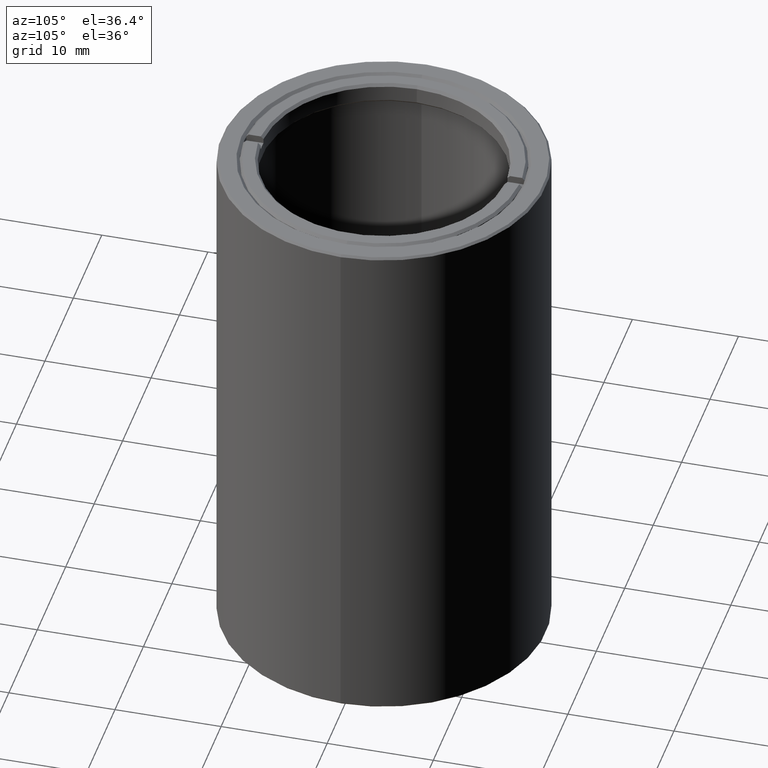
[diagram: clean part render]
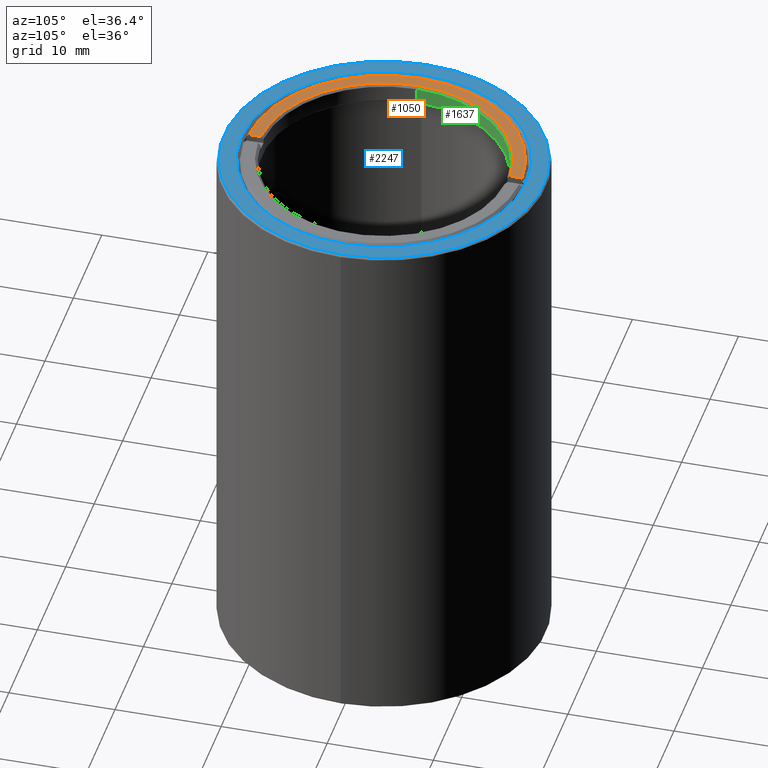
[diagram: same view with three faces highlighted in distinct colors, each labeled with its STEP entity id]
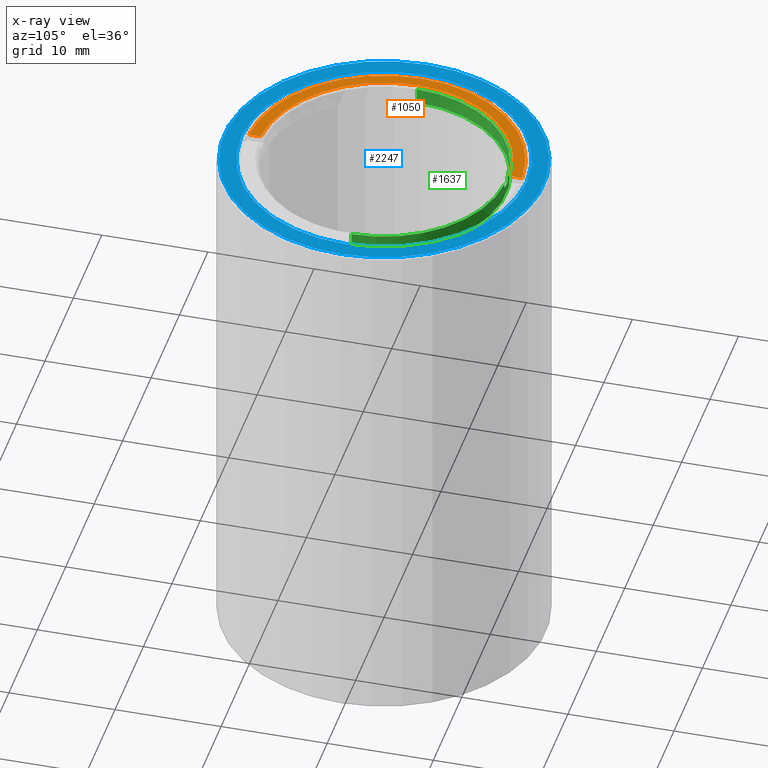
[diagram: x-ray of the same camera — body ghosted, the three highlighted faces saturated]
A machine part, auxiliary view with three faces highlighted in distinct colors.
The next image is the same camera in x-ray (body ghosted, the three faces saturated) — at least one of them is partly hidden behind the body in this view.
Their STEP definitions:

[orange] entity #1050 — the highlighted planar face has unit normal (-0, -0, 1).
#51 = VERTEX_POINT ( 'NONE', #1531 ) ;
#57 = EDGE_CURVE ( 'NONE', #894, #1726, #389, .T. ) ;
#106 = ORIENTED_EDGE ( 'NONE', *, *, #57, .F. ) ;
#389 = LINE ( 'NONE', #1717, #2373 ) ;
#394 = AXIS2_PLACEMENT_3D ( 'NONE', #1048, #2338, #1056 ) ;
#396 = CIRCLE ( 'NONE', #394, 12.89449999999998830 ) ;
#398 = ORIENTED_EDGE ( 'NONE', *, *, #2491, .T. ) ;
#483 = DIRECTION ( 'NONE',  ( 2.453409261297590497E-16, -1.000000000000000000, 1.286532111410922197E-31 ) ) ;
#533 = CARTESIAN_POINT ( 'NONE',  ( -7.776507174585690191E-16, 1.925929944387235415E-31, 6.349999999999991651 ) ) ;
#592 = EDGE_CURVE ( 'NONE', #1685, #1863, #1643, .T. ) ;
#694 = AXIS2_PLACEMENT_3D ( 'NONE', #533, #2075, #2254 ) ;
#709 = CARTESIAN_POINT ( 'NONE',  ( -0.5000000000000027756, 11.74386096009313896, 6.349999999999991651 ) ) ;
#769 = EDGE_CURVE ( 'NONE', #1685, #51, #2347, .T. ) ;
#785 = AXIS2_PLACEMENT_3D ( 'NONE', #1183, #1930, #1388 ) ;
#894 = VERTEX_POINT ( 'NONE', #2318 ) ;
#1011 = ORIENTED_EDGE ( 'NONE', *, *, #769, .T. ) ;
#1048 = CARTESIAN_POINT ( 'NONE',  ( -7.776507174585690191E-16, 1.925929944387235415E-31, 6.349999999999991651 ) ) ;
#1050 = ADVANCED_FACE ( 'NONE', ( #1468 ), #1962, .T. ) ;
#1056 = DIRECTION ( 'NONE',  ( -1.000000000000000000, -1.224646799147353207E-16, -1.345320466847732581E-16 ) ) ;
#1147 = EDGE_LOOP ( 'NONE', ( #106, #1479, #2316, #1011, #398 ) ) ;
#1180 = VECTOR ( 'NONE', #483, 1000.000000000000000 ) ;
#1183 = CARTESIAN_POINT ( 'NONE',  ( -7.776507174585690191E-16, 1.925929944387235415E-31, 6.349999999999991651 ) ) ;
#1295 = CARTESIAN_POINT ( 'NONE',  ( -7.776507174585690191E-16, 1.925929944387235415E-31, 6.349999999999991651 ) ) ;
#1318 = CARTESIAN_POINT ( 'NONE',  ( -0.4999999999999967804, -12.88480229766835095, 6.349999999999991651 ) ) ;
#1388 = DIRECTION ( 'NONE',  ( -1.000000000000000000, -1.224646799147353454E-16, -1.224646799147351235E-16 ) ) ;
#1468 = FACE_OUTER_BOUND ( 'NONE', #1147, .T. ) ;
#1479 = ORIENTED_EDGE ( 'NONE', *, *, #2148, .T. ) ;
#1531 = CARTESIAN_POINT ( 'NONE',  ( -11.75449999999998418, -1.439511080057755069E-15, 6.349999999999989875 ) ) ;
#1643 = LINE ( 'NONE', #2036, #1180 ) ;
#1685 = VERTEX_POINT ( 'NONE', #1805 ) ;
#1717 = CARTESIAN_POINT ( 'NONE',  ( -0.4999999999999741873, -104.9999999999998437, 6.349999999999991651 ) ) ;
#1726 = VERTEX_POINT ( 'NONE', #709 ) ;
#1805 = CARTESIAN_POINT ( 'NONE',  ( -0.4999999999999971689, -11.74386096009313896, 6.349999999999991651 ) ) ;
#1863 = VERTEX_POINT ( 'NONE', #1318 ) ;
#1877 = DIRECTION ( 'NONE',  ( 1.224646799147355179E-16, 7.395570986447007571E-32, -1.000000000000000000 ) ) ;
#1930 = DIRECTION ( 'NONE',  ( -1.224646799147351235E-16, -7.395570986447002097E-32, 1.000000000000000000 ) ) ;
#1962 = PLANE ( 'NONE',  #785 ) ;
#2036 = CARTESIAN_POINT ( 'NONE',  ( -0.4999999999999741873, -104.9999999999998437, 6.349999999999991651 ) ) ;
#2075 = DIRECTION ( 'NONE',  ( 1.224646799147355179E-16, 7.395570986447007571E-32, -1.000000000000000000 ) ) ;
#2100 = DIRECTION ( 'NONE',  ( -1.000000000000000000, 1.653892159485510386E-15, -1.475795206922292275E-16 ) ) ;
#2148 = EDGE_CURVE ( 'NONE', #894, #1863, #396, .T. ) ;
#2254 = DIRECTION ( 'NONE',  ( -1.000000000000000000, -1.224646799147353454E-16, -1.475795206922292275E-16 ) ) ;
#2314 = CIRCLE ( 'NONE', #694, 11.75449999999999129 ) ;
#2316 = ORIENTED_EDGE ( 'NONE', *, *, #592, .F. ) ;
#2318 = CARTESIAN_POINT ( 'NONE',  ( -0.5000000000000032196, 12.88480229766835095, 6.349999999999992539 ) ) ;
#2338 = DIRECTION ( 'NONE',  ( -1.224646799147355179E-16, -7.395570986447007571E-32, 1.000000000000000000 ) ) ;
#2347 = CIRCLE ( 'NONE', #2475, 11.75449999999999129 ) ;
#2373 = VECTOR ( 'NONE', #2476, 1000.000000000000000 ) ;
#2475 = AXIS2_PLACEMENT_3D ( 'NONE', #1295, #1877, #2100 ) ;
#2476 = DIRECTION ( 'NONE',  ( 2.453409261297590497E-16, -1.000000000000000000, 1.286532111410922197E-31 ) ) ;
#2491 = EDGE_CURVE ( 'NONE', #51, #1726, #2314, .T. ) ;

[blue] entity #2247 — the highlighted planar face has unit normal (0, 0, -1).
#11 = CARTESIAN_POINT ( 'NONE',  ( 13.45000000000000284, -1.216263278479431880E-30, 6.350000000000003197 ) ) ;
#294 = PLANE ( 'NONE',  #1001 ) ;
#335 = FACE_OUTER_BOUND ( 'NONE', #1683, .T. ) ;
#388 = CARTESIAN_POINT ( 'NONE',  ( -7.776507174585742453E-16, -1.216263278479431880E-30, 6.350000000000001421 ) ) ;
#420 = CIRCLE ( 'NONE', #1571, 15.05000000000000782 ) ;
#436 = VERTEX_POINT ( 'NONE', #11 ) ;
#476 = VERTEX_POINT ( 'NONE', #665 ) ;
#496 = CIRCLE ( 'NONE', #1671, 15.05000000000000782 ) ;
#501 = DIRECTION ( 'NONE',  ( 1.224646799147353207E-16, 0.000000000000000000, -1.000000000000000000 ) ) ;
#563 = DIRECTION ( 'NONE',  ( 1.224646799147353207E-16, 0.000000000000000000, -1.000000000000000000 ) ) ;
#585 = DIRECTION ( 'NONE',  ( 1.000000000000000000, 1.224646799147353207E-16, 1.152640183373293227E-16 ) ) ;
#665 = CARTESIAN_POINT ( 'NONE',  ( -15.05000000000000782, -3.710679801416482404E-15, 6.349999999999999645 ) ) ;
#671 = EDGE_CURVE ( 'NONE', #436, #1540, #2047, .T. ) ;
#797 = DIRECTION ( 'NONE',  ( 1.000000000000000000, 1.224646799147353207E-16, 1.152640183373293227E-16 ) ) ;
#819 = CARTESIAN_POINT ( 'NONE',  ( -7.776507174585742453E-16, -1.216263278479431880E-30, 6.350000000000001421 ) ) ;
#850 = VERTEX_POINT ( 'NONE', #2065 ) ;
#896 = CARTESIAN_POINT ( 'NONE',  ( -7.776507174585742453E-16, -1.216263278479431880E-30, 6.350000000000001421 ) ) ;
#983 = AXIS2_PLACEMENT_3D ( 'NONE', #1260, #501, #2253 ) ;
#985 = ORIENTED_EDGE ( 'NONE', *, *, #1592, .T. ) ;
#1001 = AXIS2_PLACEMENT_3D ( 'NONE', #896, #2240, #1097 ) ;
#1097 = DIRECTION ( 'NONE',  ( 1.000000000000000000, 1.224646799147353207E-16, 1.224646799147353207E-16 ) ) ;
#1103 = ORIENTED_EDGE ( 'NONE', *, *, #1116, .T. ) ;
#1116 = EDGE_CURVE ( 'NONE', #476, #850, #420, .T. ) ;
#1161 = FACE_BOUND ( 'NONE', #1924, .T. ) ;
#1260 = CARTESIAN_POINT ( 'NONE',  ( -7.776507174585742453E-16, -1.216263278479431880E-30, 6.350000000000001421 ) ) ;
#1307 = ORIENTED_EDGE ( 'NONE', *, *, #671, .T. ) ;
#1346 = CARTESIAN_POINT ( 'NONE',  ( -13.45000000000000284, -1.647149944853191766E-15, 6.349999999999999645 ) ) ;
#1408 = DIRECTION ( 'NONE',  ( -1.224646799147353207E-16, -0.000000000000000000, 1.000000000000000000 ) ) ;
#1540 = VERTEX_POINT ( 'NONE', #1346 ) ;
#1544 = CARTESIAN_POINT ( 'NONE',  ( -7.776507174585742453E-16, -1.216263278479431880E-30, 6.350000000000001421 ) ) ;
#1571 = AXIS2_PLACEMENT_3D ( 'NONE', #388, #1757, #585 ) ;
#1592 = EDGE_CURVE ( 'NONE', #850, #476, #496, .T. ) ;
#1671 = AXIS2_PLACEMENT_3D ( 'NONE', #819, #1408, #797 ) ;
#1683 = EDGE_LOOP ( 'NONE', ( #985, #1103 ) ) ;
#1757 = DIRECTION ( 'NONE',  ( -1.224646799147353207E-16, -0.000000000000000000, 1.000000000000000000 ) ) ;
#1891 = EDGE_CURVE ( 'NONE', #1540, #436, #2285, .T. ) ;
#1924 = EDGE_LOOP ( 'NONE', ( #2511, #1307 ) ) ;
#2047 = CIRCLE ( 'NONE', #983, 13.45000000000000284 ) ;
#2065 = CARTESIAN_POINT ( 'NONE',  ( 15.05000000000000782, 1.843093432716766267E-15, 6.350000000000003197 ) ) ;
#2096 = AXIS2_PLACEMENT_3D ( 'NONE', #1544, #563, #2117 ) ;
#2117 = DIRECTION ( 'NONE',  ( 1.000000000000000000, 1.224646799147353454E-16, 1.289757231209521657E-16 ) ) ;
#2240 = DIRECTION ( 'NONE',  ( 1.224646799147353207E-16, 0.000000000000000000, -1.000000000000000000 ) ) ;
#2247 = ADVANCED_FACE ( 'NONE', ( #1161, #335 ), #294, .F. ) ;
#2253 = DIRECTION ( 'NONE',  ( 1.000000000000000000, 1.224646799147353454E-16, 1.289757231209521657E-16 ) ) ;
#2285 = CIRCLE ( 'NONE', #2096, 13.45000000000000284 ) ;
#2511 = ORIENTED_EDGE ( 'NONE', *, *, #1891, .T. ) ;

[green] entity #1637 — the highlighted cylindrical surface (partial cylindrical patch) has radius 11.5045 mm, axis along (0, 0, -1).
#3 = DIRECTION ( 'NONE',  ( -1.000000000000000000, -1.224646799147353207E-16, -1.507865162307626328E-16 ) ) ;
#5 = CARTESIAN_POINT ( 'NONE',  ( -11.50449999999999839, -1.424202995068411992E-15, 6.099999999999997868 ) ) ;
#12 = ORIENTED_EDGE ( 'NONE', *, *, #1465, .F. ) ;
#15 = CARTESIAN_POINT ( 'NONE',  ( -0.5000000000000027756, 11.49362955075548243, 6.349999999999991651 ) ) ;
#42 = CARTESIAN_POINT ( 'NONE',  ( -7.776507174585690191E-16, 1.925929944387235415E-31, 6.349999999999991651 ) ) ;
#58 = ORIENTED_EDGE ( 'NONE', *, *, #338, .F. ) ;
#143 = VECTOR ( 'NONE', #1354, 1000.000000000000000 ) ;
#194 = DIRECTION ( 'NONE',  ( -1.224646799147355179E-16, -7.395570986447007571E-32, 1.000000000000000000 ) ) ;
#231 = CARTESIAN_POINT ( 'NONE',  ( 11.50449999999999839, 1.408894910079072860E-15, 6.100000000000001421 ) ) ;
#280 = EDGE_CURVE ( 'NONE', #1711, #1044, #971, .T. ) ;
#323 = EDGE_CURVE ( 'NONE', #2213, #2171, #725, .T. ) ;
#338 = EDGE_CURVE ( 'NONE', #1711, #2361, #968, .T. ) ;
#364 = AXIS2_PLACEMENT_3D ( 'NONE', #927, #1922, #775 ) ;
#369 = VERTEX_POINT ( 'NONE', #231 ) ;
#406 = DIRECTION ( 'NONE',  ( 1.224646799147355179E-16, 7.395570986447007571E-32, -1.000000000000000000 ) ) ;
#418 = DIRECTION ( 'NONE',  ( 1.000000000000000000, 1.224646799147353207E-16, 1.507865162307626328E-16 ) ) ;
#425 = CARTESIAN_POINT ( 'NONE',  ( -11.50449999999998951, -2.817789820158138619E-15, 6.349999999999989875 ) ) ;
#474 = ORIENTED_EDGE ( 'NONE', *, *, #323, .T. ) ;
#541 = VECTOR ( 'NONE', #1213, 1000.000000000000000 ) ;
#556 = VERTEX_POINT ( 'NONE', #1480 ) ;
#569 = CARTESIAN_POINT ( 'NONE',  ( 0.4999999999999954481, 11.49362955075548243, 6.349999999999992539 ) ) ;
#583 = VERTEX_POINT ( 'NONE', #2430 ) ;
#629 = CYLINDRICAL_SURFACE ( 'NONE', #1106, 11.50449999999998951 ) ;
#631 = DIRECTION ( 'NONE',  ( 1.224646799147355179E-16, 7.395570986447007571E-32, -1.000000000000000000 ) ) ;
#644 = ORIENTED_EDGE ( 'NONE', *, *, #1329, .T. ) ;
#660 = AXIS2_PLACEMENT_3D ( 'NONE', #1355, #194, #3 ) ;
#672 = ORIENTED_EDGE ( 'NONE', *, *, #1889, .T. ) ;
#725 = CIRCLE ( 'NONE', #1371, 11.50449999999998951 ) ;
#775 = DIRECTION ( 'NONE',  ( -1.000000000000000000, -1.224646799147353207E-16, -1.507865162307626328E-16 ) ) ;
#806 = CARTESIAN_POINT ( 'NONE',  ( -0.5000000000000027756, 11.49362955075548243, 5.649999999999995914 ) ) ;
#829 = LINE ( 'NONE', #425, #541 ) ;
#919 = EDGE_LOOP ( 'NONE', ( #474, #1947, #672, #12, #644, #58, #1816, #2123 ) ) ;
#927 = CARTESIAN_POINT ( 'NONE',  ( -5.633375276077836931E-16, 9.629649721936170507E-32, 4.600000000000001421 ) ) ;
#968 = LINE ( 'NONE', #569, #999 ) ;
#971 = CIRCLE ( 'NONE', #660, 11.50449999999998951 ) ;
#987 = EDGE_CURVE ( 'NONE', #2171, #556, #829, .T. ) ;
#999 = VECTOR ( 'NONE', #2165, 1000.000000000000000 ) ;
#1022 = EDGE_CURVE ( 'NONE', #2213, #1044, #2297, .T. ) ;
#1044 = VERTEX_POINT ( 'NONE', #806 ) ;
#1055 = CIRCLE ( 'NONE', #364, 11.50449999999998951 ) ;
#1090 = DIRECTION ( 'NONE',  ( -1.224646799147355179E-16, -7.395570986447007571E-32, 1.000000000000000000 ) ) ;
#1106 = AXIS2_PLACEMENT_3D ( 'NONE', #42, #631, #418 ) ;
#1140 = CARTESIAN_POINT ( 'NONE',  ( 11.50449999999998951, 1.408894910079071479E-15, 6.349999999999993427 ) ) ;
#1213 = DIRECTION ( 'NONE',  ( 1.224646799147355179E-16, 7.395570986447007571E-32, -1.000000000000000000 ) ) ;
#1272 = FACE_OUTER_BOUND ( 'NONE', #919, .T. ) ;
#1329 = EDGE_CURVE ( 'NONE', #369, #2361, #1845, .T. ) ;
#1354 = DIRECTION ( 'NONE',  ( 1.224646799147355179E-16, 7.395570986447007571E-32, -1.000000000000000000 ) ) ;
#1355 = CARTESIAN_POINT ( 'NONE',  ( -6.919254415182550267E-16, -4.814824860968089633E-31, 5.649999999999999467 ) ) ;
#1371 = AXIS2_PLACEMENT_3D ( 'NONE', #1733, #1553, #1916 ) ;
#1465 = EDGE_CURVE ( 'NONE', #369, #583, #2138, .T. ) ;
#1480 = CARTESIAN_POINT ( 'NONE',  ( -11.50449999999999662, -2.848405990136823984E-15, 4.599999999999999645 ) ) ;
#1553 = DIRECTION ( 'NONE',  ( -1.224646799147355179E-16, -7.395570986447007571E-32, 1.000000000000000000 ) ) ;
#1637 = ADVANCED_FACE ( 'NONE', ( #1272 ), #629, .F. ) ;
#1711 = VERTEX_POINT ( 'NONE', #2404 ) ;
#1733 = CARTESIAN_POINT ( 'NONE',  ( -7.470345474798873028E-16, -5.777789833161709311E-31, 6.099999999999999645 ) ) ;
#1789 = VECTOR ( 'NONE', #406, 1000.000000000000000 ) ;
#1816 = ORIENTED_EDGE ( 'NONE', *, *, #280, .T. ) ;
#1825 = DIRECTION ( 'NONE',  ( -1.000000000000000000, -1.224646799147353207E-16, -1.507865162307626328E-16 ) ) ;
#1845 = CIRCLE ( 'NONE', #2368, 11.50449999999998951 ) ;
#1889 = EDGE_CURVE ( 'NONE', #556, #583, #1055, .T. ) ;
#1916 = DIRECTION ( 'NONE',  ( -1.000000000000000000, -1.224646799147353207E-16, -1.507865162307626328E-16 ) ) ;
#1922 = DIRECTION ( 'NONE',  ( 1.224646799147355179E-16, 7.395570986447007571E-32, -1.000000000000000000 ) ) ;
#1947 = ORIENTED_EDGE ( 'NONE', *, *, #987, .T. ) ;
#2123 = ORIENTED_EDGE ( 'NONE', *, *, #1022, .F. ) ;
#2138 = LINE ( 'NONE', #1140, #143 ) ;
#2156 = CARTESIAN_POINT ( 'NONE',  ( -0.5000000000000027756, 11.49362955075548243, 6.099999999999996092 ) ) ;
#2165 = DIRECTION ( 'NONE',  ( -1.224646799147355179E-16, -7.395570986447007571E-32, 1.000000000000000000 ) ) ;
#2171 = VERTEX_POINT ( 'NONE', #5 ) ;
#2213 = VERTEX_POINT ( 'NONE', #2156 ) ;
#2231 = CARTESIAN_POINT ( 'NONE',  ( -7.470345474798873028E-16, -5.777789833161709311E-31, 6.099999999999999645 ) ) ;
#2297 = LINE ( 'NONE', #15, #1789 ) ;
#2361 = VERTEX_POINT ( 'NONE', #2480 ) ;
#2368 = AXIS2_PLACEMENT_3D ( 'NONE', #2231, #1090, #1825 ) ;
#2404 = CARTESIAN_POINT ( 'NONE',  ( 0.4999999999999955591, 11.49362955075548243, 5.649999999999999467 ) ) ;
#2430 = CARTESIAN_POINT ( 'NONE',  ( 11.50449999999999662, 1.424202995068414161E-15, 4.600000000000003197 ) ) ;
#2480 = CARTESIAN_POINT ( 'NONE',  ( 0.4999999999999954481, 11.49362955075548243, 6.100000000000000533 ) ) ;